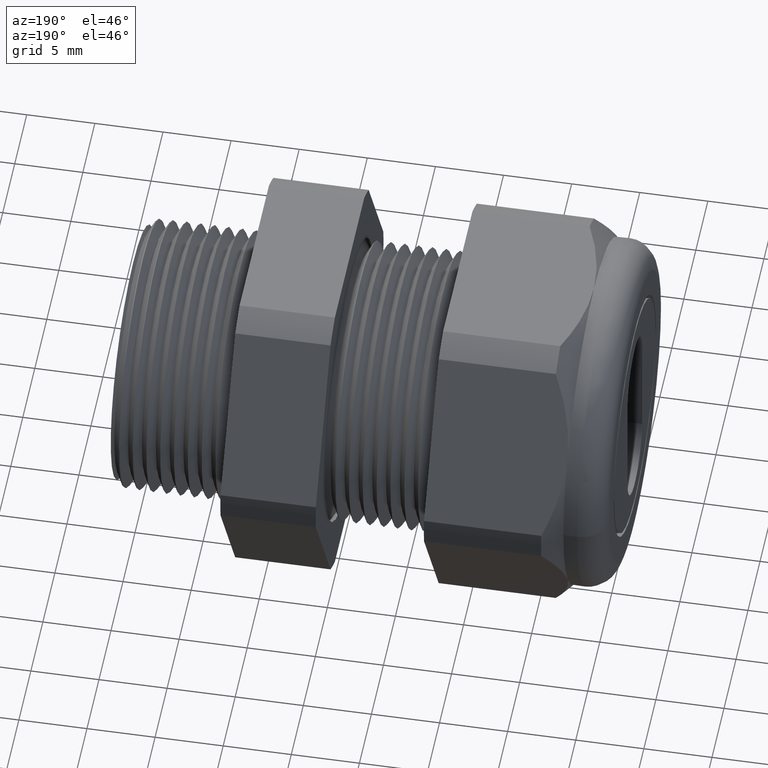
[diagram: clean part render]
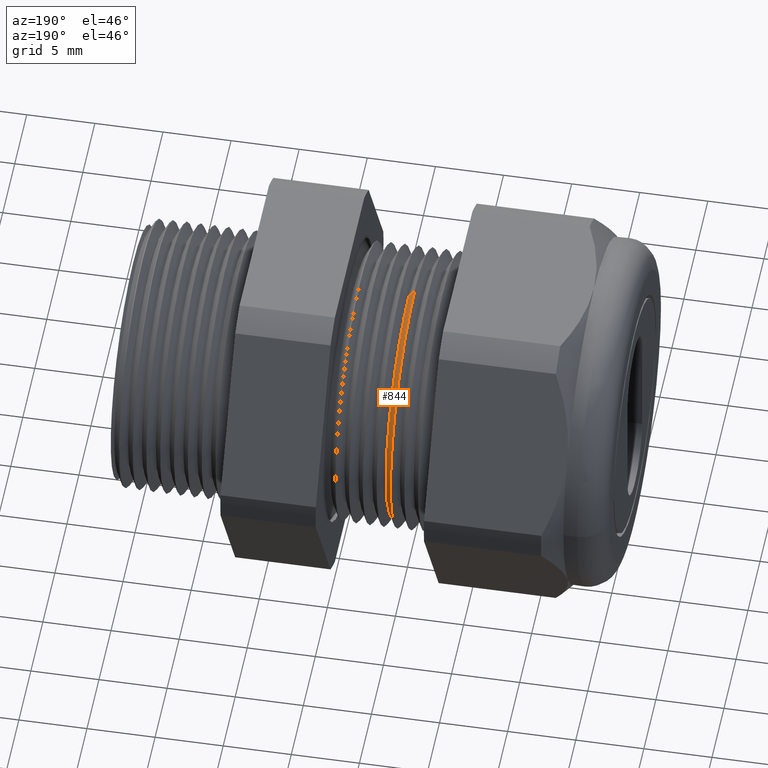
[diagram: same view with one face highlighted and labeled with its STEP entity id]
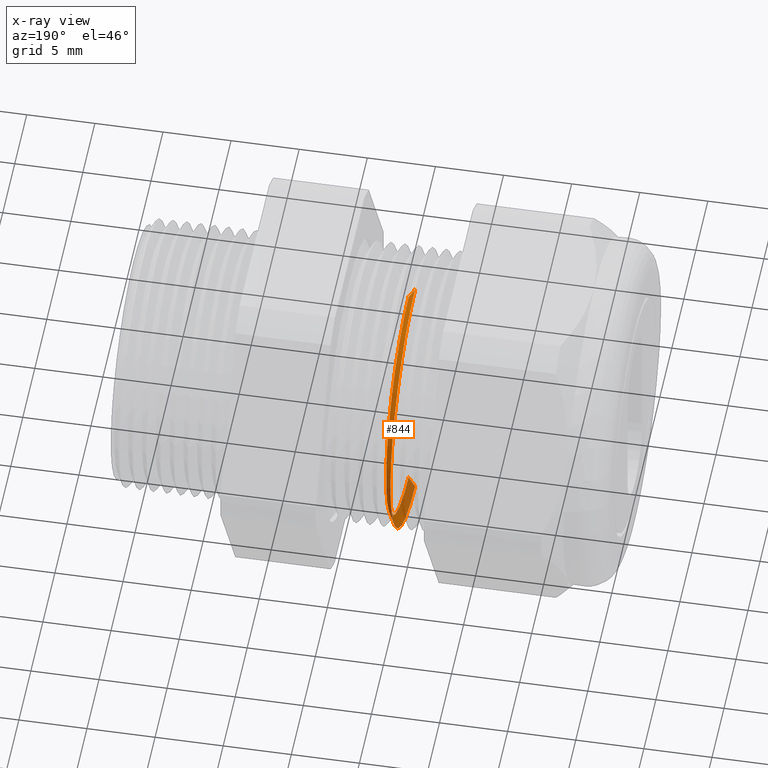
[diagram: x-ray of the same camera — body ghosted, the highlighted face saturated]
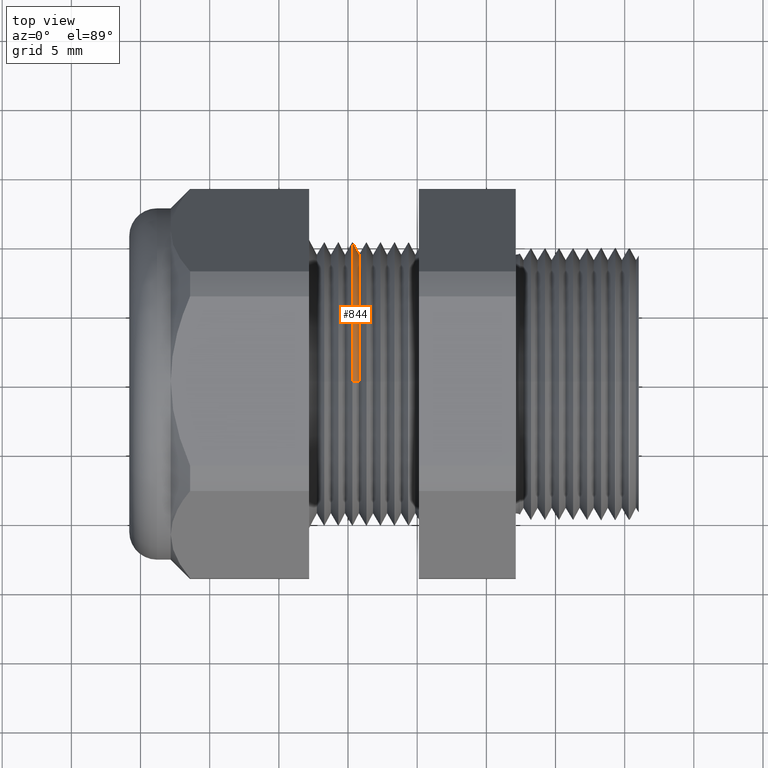
[diagram: same view with one face highlighted and labeled with its STEP entity id]
A machine part, auxiliary view. The second image highlights one B-rep face of the part: STEP entity #844.
The next image is the same camera in x-ray: the body ghosted, the highlighted face saturated — about 21% of this face is hidden behind the body in this view.
A second angle (top view) of the same face is appended — the face is thin or edge-on in the first view.
In plain terms, the highlighted conical surface has half-angle 61.5 deg.
Its self-contained STEP definition (entity closure, byte-faithful):
#836 = EDGE_CURVE ( 'NONE', #837, #838, #2676, .T. ) ;
#837 = VERTEX_POINT ( 'NONE', #2736 ) ;
#838 = VERTEX_POINT ( 'NONE', #2735 ) ;
#844 = ADVANCED_FACE ( 'NONE', ( #2726 ), #2725, .T. ) ;
#845 = EDGE_LOOP ( 'NONE', ( #846, #1012, #1015, #915 ) ) ;
#846 = ORIENTED_EDGE ( 'NONE', *, *, #836, .F. ) ;
#915 = ORIENTED_EDGE ( 'NONE', *, *, #916, .F. ) ;
#916 = EDGE_CURVE ( 'NONE', #838, #1017, #2841, .T. ) ;
#1012 = ORIENTED_EDGE ( 'NONE', *, *, #1013, .T. ) ;
#1013 = EDGE_CURVE ( 'NONE', #837, #1014, #3036, .T. ) ;
#1014 = VERTEX_POINT ( 'NONE', #3032 ) ;
#1015 = ORIENTED_EDGE ( 'NONE', *, *, #1016, .F. ) ;
#1016 = EDGE_CURVE ( 'NONE', #1017, #1014, #3031, .T. ) ;
#1017 = VERTEX_POINT ( 'NONE', #3026 ) ;
#2676 = CIRCLE ( 'NONE', #2739, 0.3694091762748932300 ) ;
#2682 = CARTESIAN_POINT ( 'NONE',  ( -0.7561499572833869600, -4.498836245066651800E-018, 0.0000000000000000000 ) ) ;
#2721 = DIRECTION ( 'NONE',  ( 0.0000000000000000000, 0.0000000000000000000, 1.000000000000000000 ) ) ;
#2722 = DIRECTION ( 'NONE',  ( -1.000000000000000000, 0.0000000000000000000, 0.0000000000000000000 ) ) ;
#2723 = CARTESIAN_POINT ( 'NONE',  ( -0.7781889763779525900, -4.498836245066651800E-018, 0.0000000000000000000 ) ) ;
#2724 = AXIS2_PLACEMENT_3D ( 'NONE', #2723, #2722, #2721 ) ;
#2725 = CONICAL_SURFACE ( 'NONE', #2724, 0.4099999999999998600, 1.073377489976514300 ) ;
#2726 = FACE_OUTER_BOUND ( 'NONE', #845, .T. ) ;
#2735 = CARTESIAN_POINT ( 'NONE',  ( -0.7561499572833869600, -4.498836245066651800E-018, 0.3694091762748932300 ) ) ;
#2736 = CARTESIAN_POINT ( 'NONE',  ( -0.7561499572833869600, 4.285995278711423200E-017, -0.3694091762748932300 ) ) ;
#2737 = DIRECTION ( 'NONE',  ( 0.0000000000000000000, 0.0000000000000000000, -1.000000000000000000 ) ) ;
#2738 = DIRECTION ( 'NONE',  ( 1.000000000000000000, 0.0000000000000000000, 0.0000000000000000000 ) ) ;
#2739 = AXIS2_PLACEMENT_3D ( 'NONE', #2682, #2738, #2737 ) ;
#2838 = DIRECTION ( 'NONE',  ( -0.4771587602596069600, 0.0000000000000000000, 0.8788171126619660500 ) ) ;
#2839 = VECTOR ( 'NONE', #2838, 39.37007874015748900 ) ;
#2840 = CARTESIAN_POINT ( 'NONE',  ( -0.7781889763779525900, -4.498836245066651800E-018, 0.4099999999999998600 ) ) ;
#2841 = LINE ( 'NONE', #2840, #2839 ) ;
#3026 = CARTESIAN_POINT ( 'NONE',  ( -0.7749413101463805700, 4.647877737091316500E-017, 0.4040185428871364600 ) ) ;
#3027 = DIRECTION ( 'NONE',  ( 0.0000000000000000000, 0.0000000000000000000, 1.000000000000000000 ) ) ;
#3028 = DIRECTION ( 'NONE',  ( -1.000000000000000000, 0.0000000000000000000, 0.0000000000000000000 ) ) ;
#3029 = CARTESIAN_POINT ( 'NONE',  ( -0.7749413101463805700, -2.999224163377768100E-018, 0.0000000000000000000 ) ) ;
#3030 = AXIS2_PLACEMENT_3D ( 'NONE', #3029, #3028, #3027 ) ;
#3031 = CIRCLE ( 'NONE', #3030, 0.4040185428871364000 ) ;
#3032 = CARTESIAN_POINT ( 'NONE',  ( -0.7749413101463805700, -2.999224163377768100E-018, -0.4040185428871364600 ) ) ;
#3033 = DIRECTION ( 'NONE',  ( -0.4771587602596069600, 1.076240564057395700E-016, -0.8788171126619660500 ) ) ;
#3034 = VECTOR ( 'NONE', #3033, 39.37007874015748900 ) ;
#3035 = CARTESIAN_POINT ( 'NONE',  ( -0.7781889763779525900, 4.571168251997481500E-017, -0.4099999999999998600 ) ) ;
#3036 = LINE ( 'NONE', #3035, #3034 ) ;